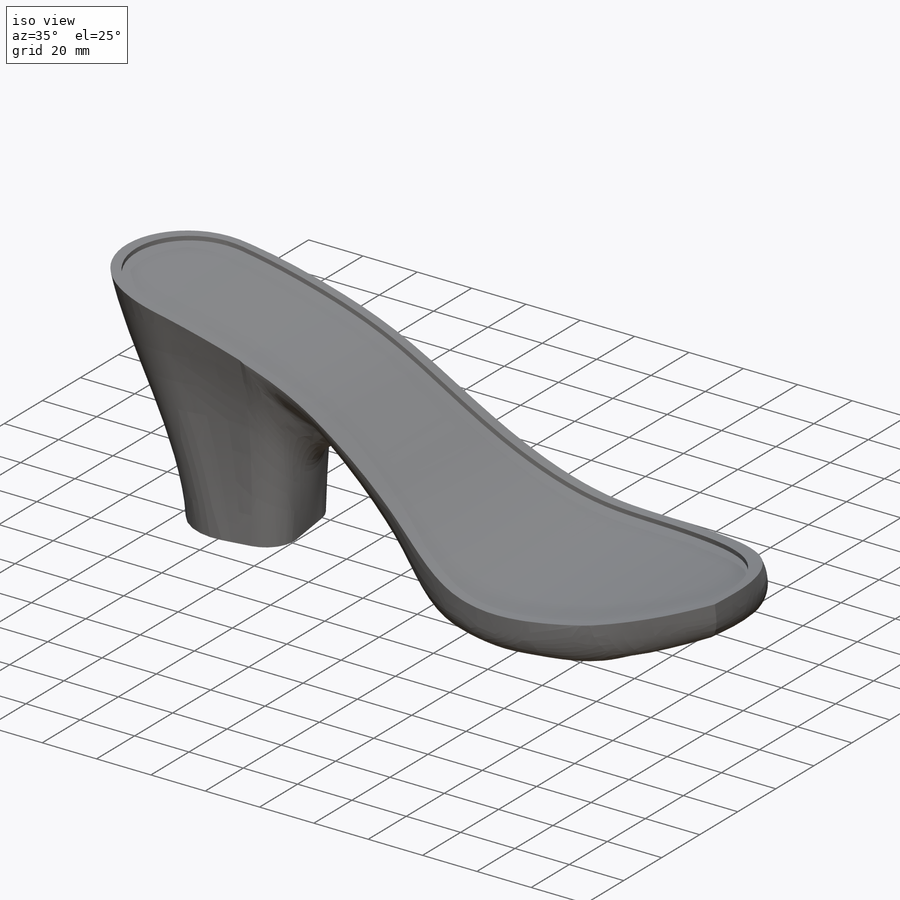
[diagram: iso view]
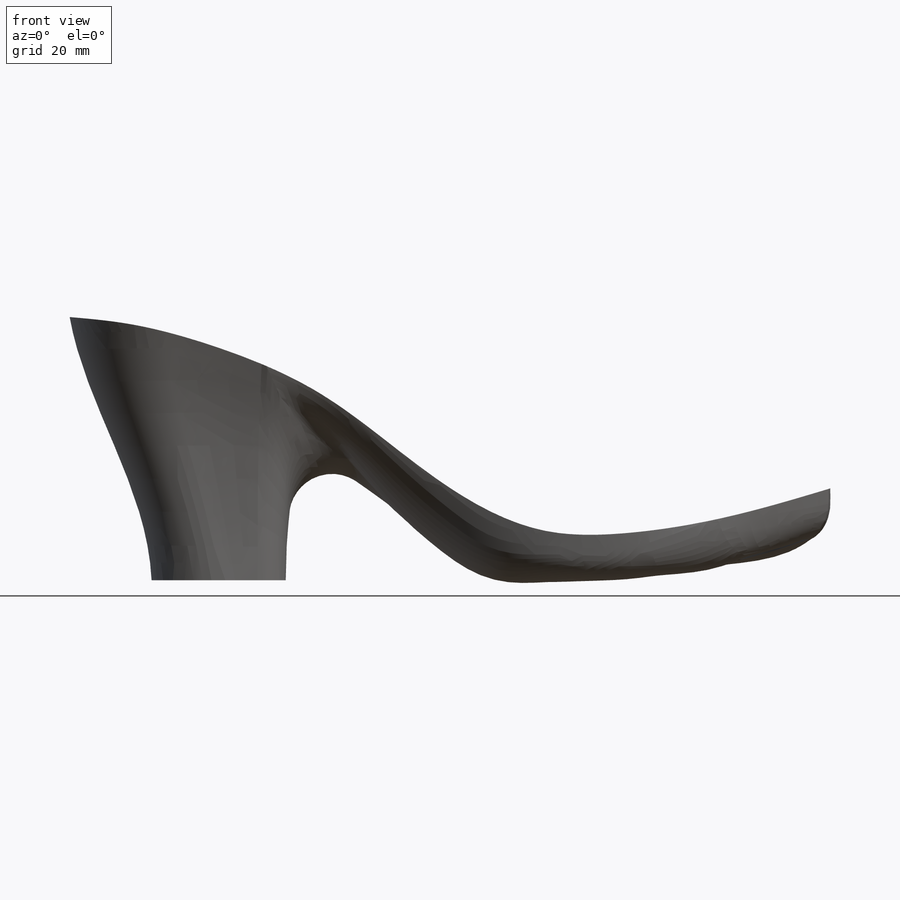
[diagram: front view]
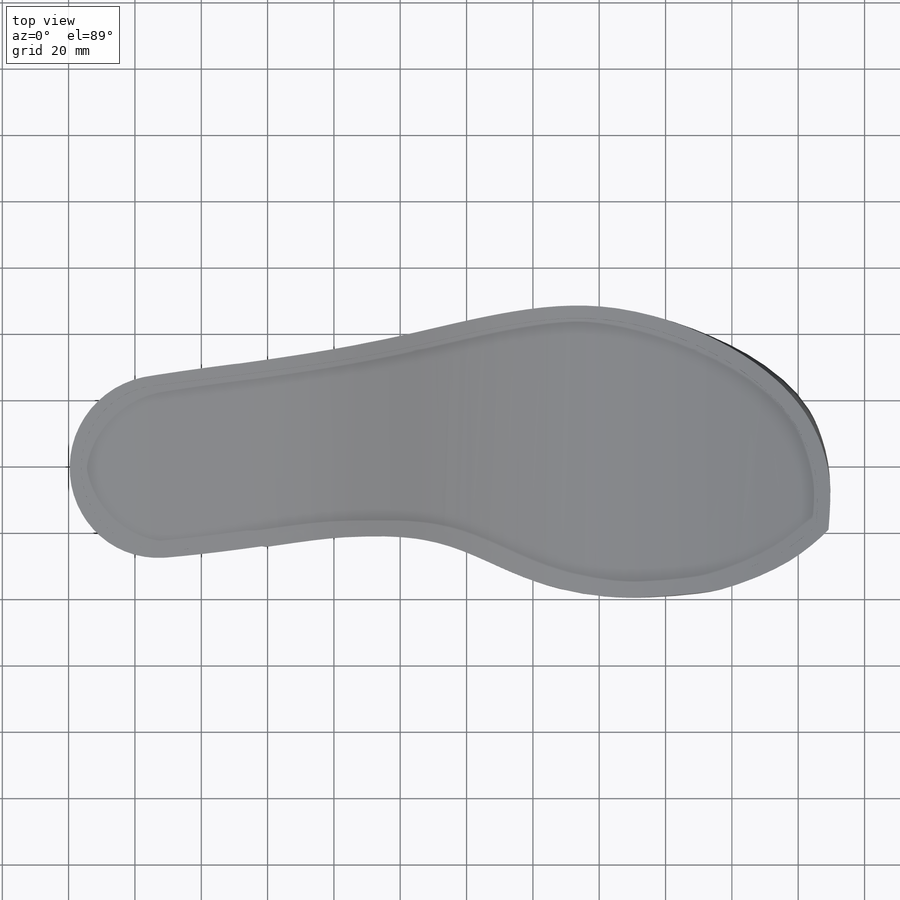
[diagram: top view]
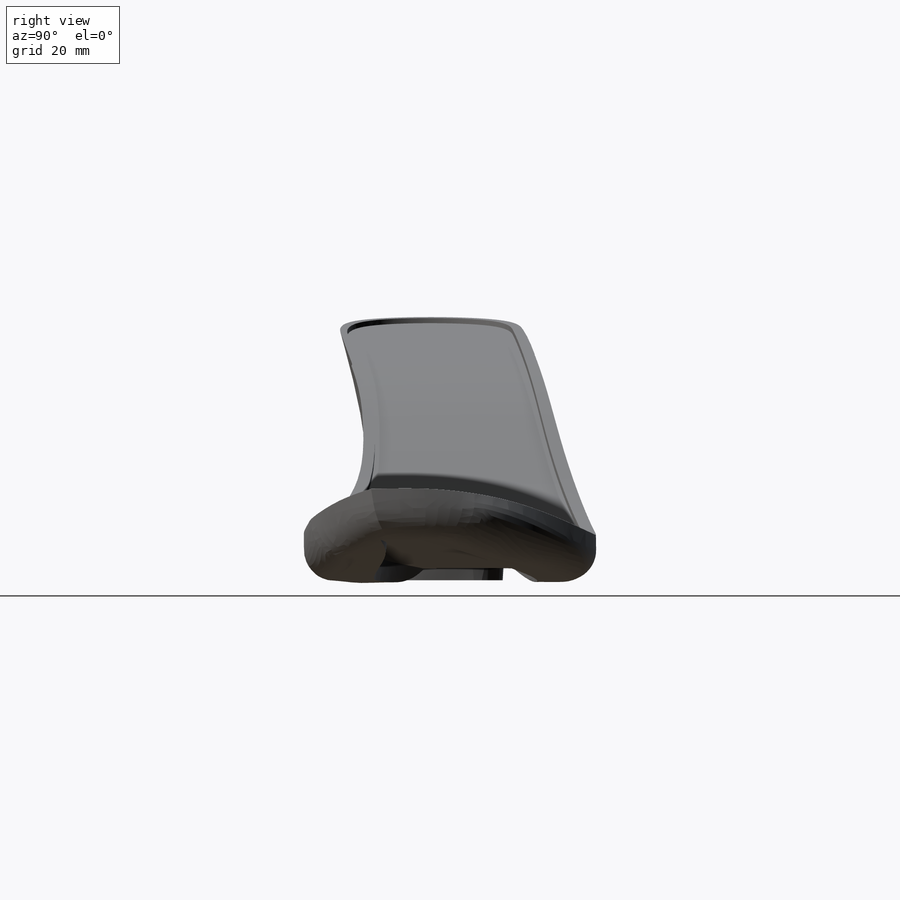
[diagram: right view]
SOLIDWORKS PART (.sldprt)
format: sldprt  version: not decoded by parser v0  size: 910,336 bytes
history: native  units: mm
features: sketch x41, plane x13, cut_extrude x3, material x1 (+16 scaffold rows collapsed)
feature tree (74):
  scaffold x16  (default folders/planes/origin — collapsed)
  material  "Material <not specified>"
  sketch  "Sketch1"
  sketch  "Sketch2"
  sketch  "Sketch3"  dims[c1.D1=~33.178264mm c1.D2=81.28mm c1.D3=~5.487026mm c2.D3=~91.250398deg c3.D3=~87.662996mm c4.D3=~10.376268deg c5.D3=43.18mm c5.D4=12.7mm c5.D5=~58.769972mm]
  sketch  "Sketch5"  dims[c1.D1=~57.074193mm c2.D1=70.0deg]
  sketch  "Sketch6"
  sketch  "Curve2"
  plane  "Plane4"
  sketch  "Sketch13"  dims[c1.D1=~25.76034mm c2.D1=20.0deg c2.D2=81.28mm]
  sketch  "Sketch11"
  sketch  "3DSketch2"
  sketch  "Sketch14"  dims[D1=6.35mm]
  sketch  "Sketch15"  dims[c1.D1=~11.799353mm c2.D1=~22.837311deg c3.D1=~11.057647mm c4.D1=10.0deg]
  plane  "Plane5"
  sketch  "Sketch16"
  plane  "Plane6"
  sketch  "Sketch17"
  plane  "Plane7"
  sketch  "Sketch18"  dims[D1=15.24mm D2=17.78mm]
  sketch  "Sketch19"
  sketch  "3DSketch3"
  plane  "Plane8"
  plane  "Plane9"
  sketch  "Sketch20"  dims[D1=10.16mm D2=10.16mm]
  sketch  "Sketch21"  dims[D1=8.89mm D2=8.89mm]
  plane  "Plane10"
  sketch  "Sketch22"  dims[D1=10.16mm D2=12.7mm]
  plane  "Plane11"
  sketch  "Sketch23"  dims[D1=12.7mm]
  sketch  "Sketch24"
  sketch  "Sketch25"
  sketch  "Sketch26"  dims[D1=0.0mm]
  sketch  "3DSketch3<3>"
  sketch  "3DSketch3<4>"
  sketch  "Sketch17<5>"
  sketch  "3DSketch2<3>"
  sketch  "Sketch27"
  sketch  "Sketch28"
  sketch  "Sketch29"
  sketch  "Sketch30"
  sketch  "Sketch31"
  plane  "Plane12"
  sketch  "Curve4"
  sketch  "3DSketch4"
  sketch  "Sketch32"
  plane  "Plane13"
  sketch  "Sketch34"
  sketch  "Sketch35"
  sketch  "Sketch37"  dims[D1=1.905mm]
  cut_extrude  "Cut-Extrude1"  [1 undecoded]
  plane  "Plane14"
  sketch  "Sketch40"
  cut_extrude  "Cut-Extrude2"  Depth=4.318mm
  plane  "Plane15"  Offset=42.476126mm
  plane  "Plane16"  Offset=101.6mm
  sketch  "Sketch41"  dims[D1=3.81mm]
  sketch  "Sketch42"  dims[D1=1.905mm]
  cut_extrude  "Cut-Extrude6"  Depth=1.524mm
decode coverage: 16 of 44 modeling features carry decoded parameters
note: ~ marks probable driven/reference dimensions
note: 1 parameter value undecoded
note: suppression state not decoded; provenance and decode notes live in map.json
